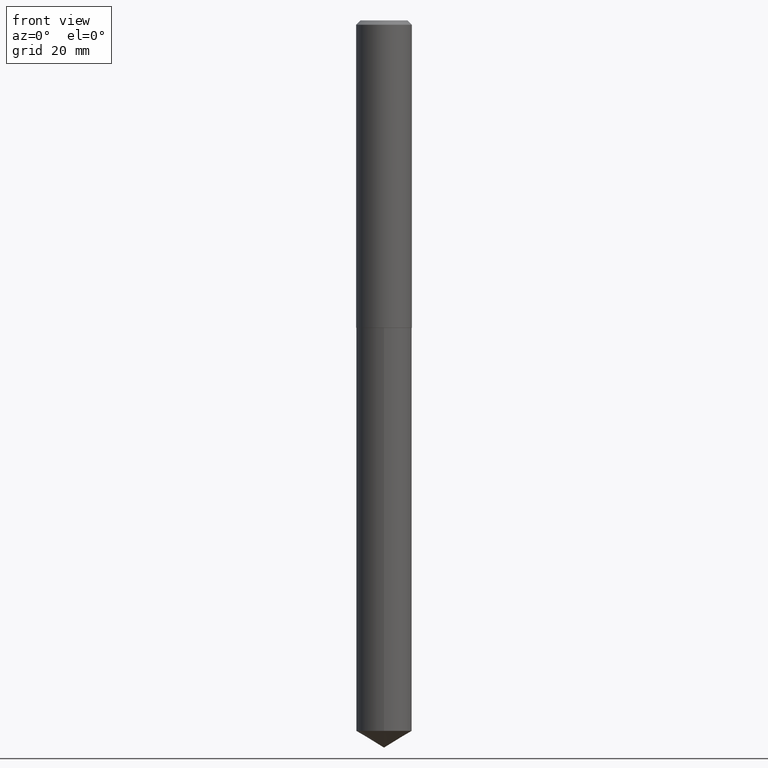
[diagram: clean part render]
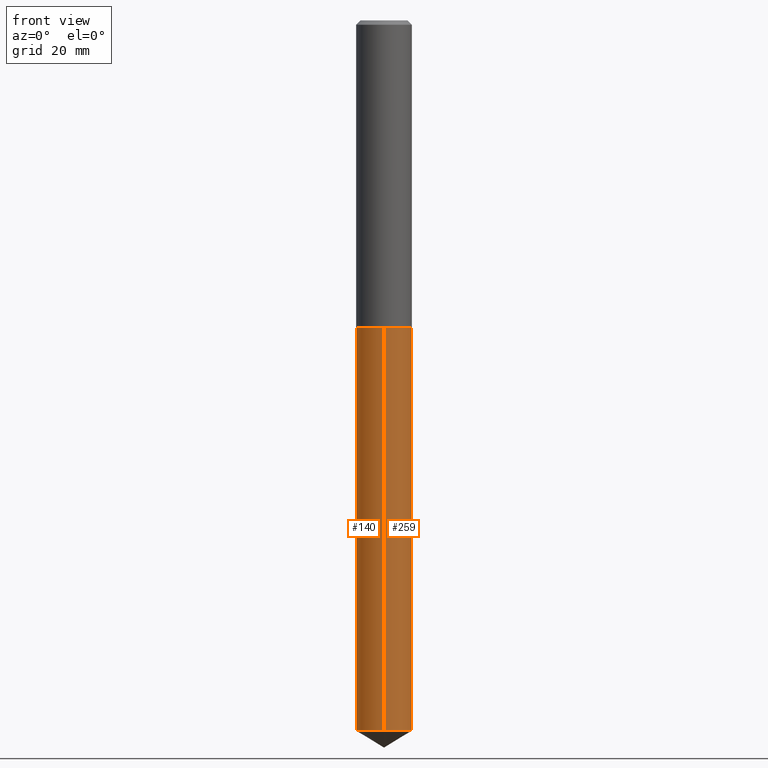
[diagram: same view with one multi-face feature highlighted, each face labeled with its STEP entity id]
A machine part, front view. The highlighted faces form ONE feature: a constant-radius fillet chain: 2 tangent blend faces with common blend radius 5.1003 mm. The faces share edges in the B-rep.
Their STEP definitions:
[1] entity #140 (Cylinder):
#6 = DIRECTION ( 'NONE',  ( -2.445428185463141747E-29, 3.491539510029030103E-15, 1.000000000000000000 ) ) ;
#12 = ORIENTED_EDGE ( 'NONE', *, *, #339, .F. ) ;
#16 = EDGE_LOOP ( 'NONE', ( #12, #303, #57, #387 ) ) ;
#17 = AXIS2_PLACEMENT_3D ( 'NONE', #158, #325, #24 ) ;
#24 = DIRECTION ( 'NONE',  ( -6.982962677686266711E-15, -1.000000000000000000, 5.441928274231599754E-15 ) ) ;
#29 = CARTESIAN_POINT ( 'NONE',  ( 1.426769813406406449E-15, 0.2007999999999922902, -2.212600000000001899 ) ) ;
#31 = CARTESIAN_POINT ( 'NONE',  ( -1.402178905679348314E-15, -0.2008000000000077223, -2.212600000000000122 ) ) ;
#53 = DIRECTION ( 'NONE',  ( -6.982962677686266711E-15, -1.000000000000000000, 4.081446205673699815E-15 ) ) ;
#57 = ORIENTED_EDGE ( 'NONE', *, *, #308, .T. ) ;
#61 = VERTEX_POINT ( 'NONE', #114 ) ;
#74 = VECTOR ( 'NONE', #344, 39.37007874015748143 ) ;
#85 = FACE_OUTER_BOUND ( 'NONE', #16, .T. ) ;
#114 = CARTESIAN_POINT ( 'NONE',  ( 1.426769813406406252E-15, 0.2007999999999821872, -5.115547187699267084 ) ) ;
#121 = CARTESIAN_POINT ( 'NONE',  ( 1.426769813406335057E-15, 0.2007999999999922902, -2.212600000000001899 ) ) ;
#131 = EDGE_CURVE ( 'NONE', #255, #375, #179, .T. ) ;
#140 = ADVANCED_FACE ( 'NONE', ( #85 ), #266, .T. ) ;
#158 = CARTESIAN_POINT ( 'NONE',  ( 1.250979315427598135E-28, -1.786100641170398941E-14, -5.115547187699266196 ) ) ;
#166 = AXIS2_PLACEMENT_3D ( 'NONE', #170, #6, #53 ) ;
#170 = CARTESIAN_POINT ( 'NONE',  ( 5.410844280565235074E-29, -7.725251610324346826E-15, -2.212600000000001010 ) ) ;
#179 = CIRCLE ( 'NONE', #166, 0.2008000000000000063 ) ;
#203 = VECTOR ( 'NONE', #219, 39.37007874015748143 ) ;
#213 = DIRECTION ( 'NONE',  ( -6.982962677686266711E-15, -1.000000000000000000, 4.081446205673699815E-15 ) ) ;
#219 = DIRECTION ( 'NONE',  ( -2.445428185463141747E-29, 3.491539510029030103E-15, 1.000000000000000000 ) ) ;
#232 = CARTESIAN_POINT ( 'NONE',  ( -1.402178905679277119E-15, -0.2008000000000178809, -5.115547187699265308 ) ) ;
#239 = DIRECTION ( 'NONE',  ( -2.445428185463141747E-29, 3.491539510029030103E-15, 1.000000000000000000 ) ) ;
#241 = VERTEX_POINT ( 'NONE', #232 ) ;
#255 = VERTEX_POINT ( 'NONE', #29 ) ;
#257 = CARTESIAN_POINT ( 'NONE',  ( -1.402178905679348314E-15, -0.2008000000000077223, -2.212600000000000122 ) ) ;
#266 = CYLINDRICAL_SURFACE ( 'NONE', #307, 0.2008000000000000063 ) ;
#272 = EDGE_CURVE ( 'NONE', #61, #241, #357, .T. ) ;
#303 = ORIENTED_EDGE ( 'NONE', *, *, #272, .T. ) ;
#307 = AXIS2_PLACEMENT_3D ( 'NONE', #328, #239, #213 ) ;
#308 = EDGE_CURVE ( 'NONE', #241, #375, #388, .T. ) ;
#325 = DIRECTION ( 'NONE',  ( -2.445428185463141747E-29, 3.491539510029030103E-15, 1.000000000000000000 ) ) ;
#328 = CARTESIAN_POINT ( 'NONE',  ( 5.410844280565235074E-29, -7.725251610324346826E-15, -2.212600000000001010 ) ) ;
#339 = EDGE_CURVE ( 'NONE', #61, #255, #376, .T. ) ;
#344 = DIRECTION ( 'NONE',  ( -2.445428185463141747E-29, 3.491539510029030103E-15, 1.000000000000000000 ) ) ;
#357 = CIRCLE ( 'NONE', #17, 0.2008000000000000063 ) ;
#375 = VERTEX_POINT ( 'NONE', #257 ) ;
#376 = LINE ( 'NONE', #121, #74 ) ;
#387 = ORIENTED_EDGE ( 'NONE', *, *, #131, .F. ) ;
#388 = LINE ( 'NONE', #31, #203 ) ;
[2] entity #259 (Cylinder):
#29 = CARTESIAN_POINT ( 'NONE',  ( 1.426769813406406449E-15, 0.2007999999999922902, -2.212600000000001899 ) ) ;
#31 = CARTESIAN_POINT ( 'NONE',  ( -1.402178905679348314E-15, -0.2008000000000077223, -2.212600000000000122 ) ) ;
#32 = DIRECTION ( 'NONE',  ( -2.445428185463141747E-29, 3.491539510029030103E-15, 1.000000000000000000 ) ) ;
#35 = DIRECTION ( 'NONE',  ( -6.982962677686266711E-15, -1.000000000000000000, 4.081446205673699815E-15 ) ) ;
#61 = VERTEX_POINT ( 'NONE', #114 ) ;
#74 = VECTOR ( 'NONE', #344, 39.37007874015748143 ) ;
#114 = CARTESIAN_POINT ( 'NONE',  ( 1.426769813406406252E-15, 0.2007999999999821872, -5.115547187699267084 ) ) ;
#121 = CARTESIAN_POINT ( 'NONE',  ( 1.426769813406335057E-15, 0.2007999999999922902, -2.212600000000001899 ) ) ;
#122 = AXIS2_PLACEMENT_3D ( 'NONE', #330, #299, #234 ) ;
#134 = DIRECTION ( 'NONE',  ( -6.982962677686266711E-15, -1.000000000000000000, 4.081446205673699815E-15 ) ) ;
#144 = ORIENTED_EDGE ( 'NONE', *, *, #308, .F. ) ;
#145 = EDGE_CURVE ( 'NONE', #241, #61, #390, .T. ) ;
#154 = CIRCLE ( 'NONE', #265, 0.2008000000000000063 ) ;
#180 = EDGE_CURVE ( 'NONE', #375, #255, #154, .T. ) ;
#203 = VECTOR ( 'NONE', #219, 39.37007874015748143 ) ;
#204 = DIRECTION ( 'NONE',  ( -2.445428185463141747E-29, 3.491539510029030103E-15, 1.000000000000000000 ) ) ;
#208 = AXIS2_PLACEMENT_3D ( 'NONE', #269, #204, #35 ) ;
#219 = DIRECTION ( 'NONE',  ( -2.445428185463141747E-29, 3.491539510029030103E-15, 1.000000000000000000 ) ) ;
#232 = CARTESIAN_POINT ( 'NONE',  ( -1.402178905679277119E-15, -0.2008000000000178809, -5.115547187699265308 ) ) ;
#234 = DIRECTION ( 'NONE',  ( -6.982962677686266711E-15, -1.000000000000000000, 5.441928274231599754E-15 ) ) ;
#236 = FACE_OUTER_BOUND ( 'NONE', #324, .T. ) ;
#241 = VERTEX_POINT ( 'NONE', #232 ) ;
#249 = ORIENTED_EDGE ( 'NONE', *, *, #339, .T. ) ;
#255 = VERTEX_POINT ( 'NONE', #29 ) ;
#257 = CARTESIAN_POINT ( 'NONE',  ( -1.402178905679348314E-15, -0.2008000000000077223, -2.212600000000000122 ) ) ;
#259 = ADVANCED_FACE ( 'NONE', ( #236 ), #297, .T. ) ;
#265 = AXIS2_PLACEMENT_3D ( 'NONE', #295, #32, #134 ) ;
#269 = CARTESIAN_POINT ( 'NONE',  ( 5.410844280565235074E-29, -7.725251610324346826E-15, -2.212600000000001010 ) ) ;
#293 = ORIENTED_EDGE ( 'NONE', *, *, #145, .T. ) ;
#295 = CARTESIAN_POINT ( 'NONE',  ( 5.410844280565235074E-29, -7.725251610324346826E-15, -2.212600000000001010 ) ) ;
#297 = CYLINDRICAL_SURFACE ( 'NONE', #208, 0.2008000000000000063 ) ;
#299 = DIRECTION ( 'NONE',  ( -2.445428185463141747E-29, 3.491539510029030103E-15, 1.000000000000000000 ) ) ;
#308 = EDGE_CURVE ( 'NONE', #241, #375, #388, .T. ) ;
#320 = ORIENTED_EDGE ( 'NONE', *, *, #180, .F. ) ;
#324 = EDGE_LOOP ( 'NONE', ( #293, #249, #320, #144 ) ) ;
#330 = CARTESIAN_POINT ( 'NONE',  ( 1.250979315427598135E-28, -1.786100641170398941E-14, -5.115547187699266196 ) ) ;
#339 = EDGE_CURVE ( 'NONE', #61, #255, #376, .T. ) ;
#344 = DIRECTION ( 'NONE',  ( -2.445428185463141747E-29, 3.491539510029030103E-15, 1.000000000000000000 ) ) ;
#375 = VERTEX_POINT ( 'NONE', #257 ) ;
#376 = LINE ( 'NONE', #121, #74 ) ;
#388 = LINE ( 'NONE', #31, #203 ) ;
#390 = CIRCLE ( 'NONE', #122, 0.2008000000000000063 ) ;